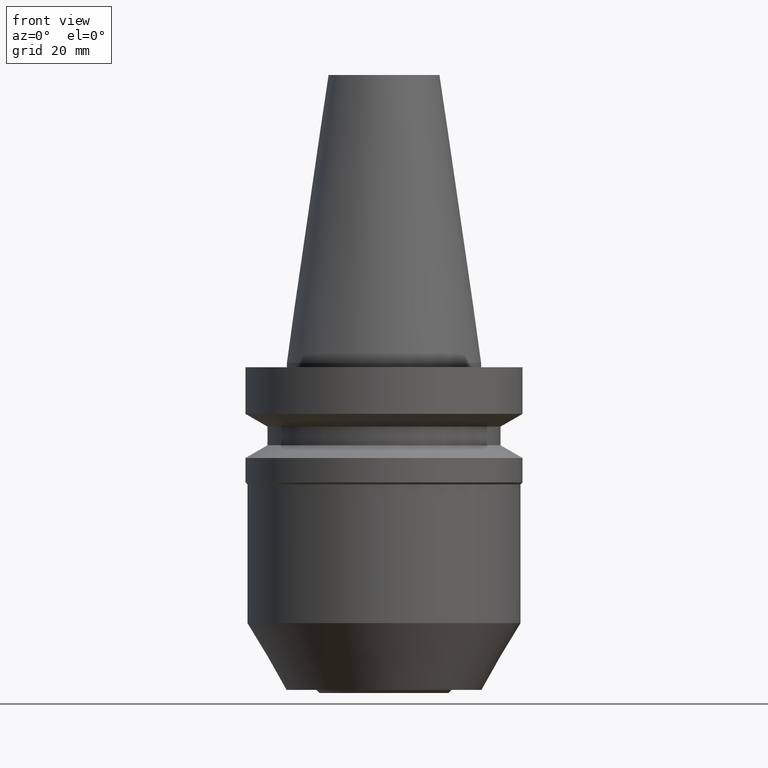
[diagram: clean part render]
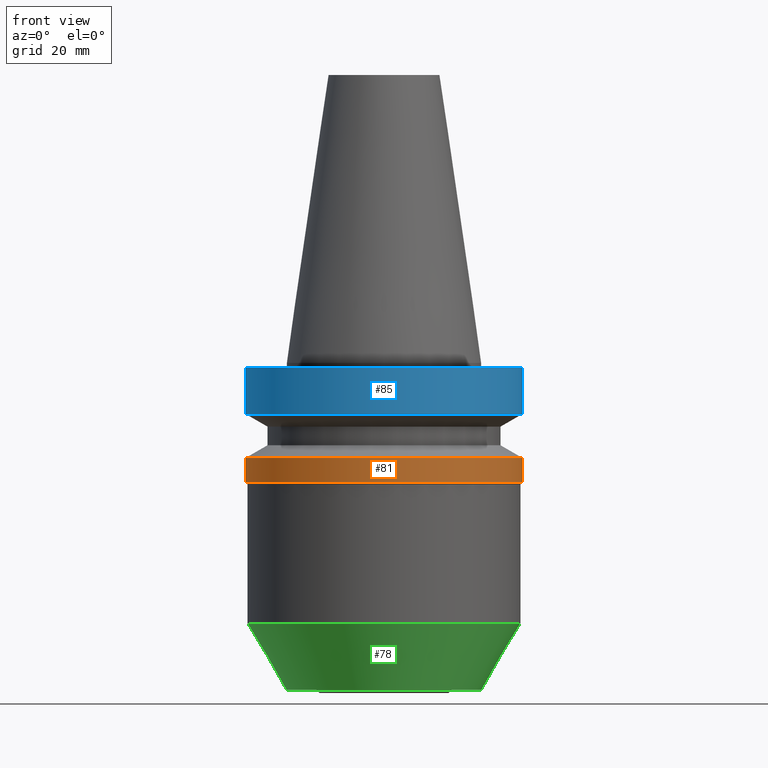
[diagram: same view with three faces highlighted in distinct colors, each labeled with its STEP entity id]
A machine part, front view with three faces highlighted in distinct colors.
Their STEP definitions:

[orange] entity #81 — the highlighted cylindrical surface (bore or boss wall) has radius 31.5 mm, axis along (0, 0, -1).
#81=ADVANCED_FACE('',(#108,#109),#110,.T.);
#108=FACE_BOUND('',#151,.T.);
#109=FACE_BOUND('',#152,.T.);
#110=CYLINDRICAL_SURFACE('',#153,31.5000000000009);
#151=EDGE_LOOP('',(#206));
#152=EDGE_LOOP('',(#207));
#153=AXIS2_PLACEMENT_3D('',#208,#209,#210);
#206=ORIENTED_EDGE('',*,*,#256,.F.);
#207=ORIENTED_EDGE('',*,*,#255,.T.);
#208=CARTESIAN_POINT('',(1.49253379602267E-015,2.98506759204535E-015,-24.3749266655796));
#209=DIRECTION('',(6.12323399573677E-017,1.22464679914766E-016,-1.0));
#210=DIRECTION('',(-1.23259516440779E-032,1.0,1.22464679914766E-016));
#255=EDGE_CURVE('',#274,#274,#275,.T.);
#256=EDGE_CURVE('',#276,#276,#277,.T.);
#274=VERTEX_POINT('',#302);
#275=CIRCLE('',#303,31.5000000000005);
#276=VERTEX_POINT('',#304);
#277=CIRCLE('',#305,31.5000000000014);
#302=CARTESIAN_POINT('',(1.662458029841E-015,31.5000000000005,-27.149999999975));
#303=AXIS2_PLACEMENT_3D('',#335,#336,#337);
#304=CARTESIAN_POINT('',(1.32260956220435E-015,31.5000000000014,-21.5998533311842));
#305=AXIS2_PLACEMENT_3D('',#338,#339,#340);
#335=CARTESIAN_POINT('',(1.662458029841E-015,3.324916059682E-015,-27.149999999975));
#336=DIRECTION('',(-6.12323399573677E-017,-1.22464679914768E-016,1.0));
#337=DIRECTION('',(-1.23259516440781E-032,1.0,1.22464679914768E-016));
#338=CARTESIAN_POINT('',(1.32260956220435E-015,2.6452191244087E-015,-21.5998533311842));
#339=DIRECTION('',(-6.12323399573677E-017,-1.22464679914765E-016,1.0));
#340=DIRECTION('',(-1.23259516440778E-032,1.0,1.22464679914765E-016));

[blue] entity #85 — the highlighted cylindrical surface (bore or boss wall) has radius 31.5 mm, axis along (0, 0, -1).
#85=ADVANCED_FACE('',(#120,#121),#122,.T.);
#120=FACE_BOUND('',#163,.T.);
#121=FACE_BOUND('',#164,.T.);
#122=CYLINDRICAL_SURFACE('',#165,31.5000000000011);
#163=EDGE_LOOP('',(#226));
#164=EDGE_LOOP('',(#227));
#165=AXIS2_PLACEMENT_3D('',#228,#229,#230);
#226=ORIENTED_EDGE('',*,*,#260,.F.);
#227=ORIENTED_EDGE('',*,*,#259,.T.);
#228=CARTESIAN_POINT('',(3.85768232168875E-016,7.71536464337749E-016,-6.30007333440894));
#229=DIRECTION('',(6.12323399573677E-017,1.22464679914766E-016,-1.0));
#230=DIRECTION('',(-1.23259516440779E-032,1.0,1.22464679914766E-016));
#259=EDGE_CURVE('',#282,#282,#283,.T.);
#260=EDGE_CURVE('',#284,#284,#285,.T.);
#282=VERTEX_POINT('',#310);
#283=CIRCLE('',#311,31.5000000000011);
#284=VERTEX_POINT('',#312);
#285=CIRCLE('',#313,31.5000000000011);
#310=CARTESIAN_POINT('',(7.10304124380372E-016,31.5000000000011,-11.6001466688177));
#311=AXIS2_PLACEMENT_3D('',#347,#348,#349);
#312=CARTESIAN_POINT('',(6.12323399573762E-017,31.5000000000011,-1.00000000000014));
#313=AXIS2_PLACEMENT_3D('',#350,#351,#352);
#347=CARTESIAN_POINT('',(7.10304124380372E-016,1.42060824876074E-015,-11.6001466688177));
#348=DIRECTION('',(-6.12323399573677E-017,-1.22464679914766E-016,1.0));
#349=DIRECTION('',(-1.23259516440779E-032,1.0,1.22464679914766E-016));
#350=CARTESIAN_POINT('',(6.12323399573764E-017,1.22464679914753E-016,-1.00000000000014));
#351=DIRECTION('',(-6.12323399573677E-017,-1.22464679914766E-016,1.0));
#352=DIRECTION('',(-1.23259516440779E-032,1.0,1.22464679914766E-016));

[green] entity #78 — the highlighted conical surface has half-angle 30 deg.
#78=ADVANCED_FACE('',(#99,#100),#101,.T.);
#99=FACE_BOUND('',#142,.T.);
#100=FACE_BOUND('',#143,.T.);
#101=CONICAL_SURFACE('',#144,26.6749999999893,0.523598775598276);
#142=EDGE_LOOP('',(#191));
#143=EDGE_LOOP('',(#192));
#144=AXIS2_PLACEMENT_3D('',#193,#194,#195);
#191=ORIENTED_EDGE('',*,*,#253,.F.);
#192=ORIENTED_EDGE('',*,*,#252,.T.);
#193=CARTESIAN_POINT('',(4.08556119189093E-015,8.17112238378185E-015,-66.7222777168969));
#194=DIRECTION('',(-6.12323399573677E-017,-1.22464679914743E-016,1.0));
#195=DIRECTION('',(-1.23259516440779E-032,1.0,1.22464679914743E-016));
#252=EDGE_CURVE('',#268,#268,#269,.T.);
#253=EDGE_CURVE('',#270,#270,#271,.T.);
#268=VERTEX_POINT('',#296);
#269=CIRCLE('',#297,22.2999999999999);
#270=VERTEX_POINT('',#298);
#271=CIRCLE('',#299,31.0499999999786);
#296=CARTESIAN_POINT('',(4.54956285883197E-015,22.2999999999999,-74.2999999999927));
#297=AXIS2_PLACEMENT_3D('',#326,#327,#328);
#298=CARTESIAN_POINT('',(3.62155952494988E-015,31.0499999999786,-59.144555433801));
#299=AXIS2_PLACEMENT_3D('',#329,#330,#331);
#326=CARTESIAN_POINT('',(4.54956285883197E-015,9.09912571766394E-015,-74.2999999999927));
#327=DIRECTION('',(-6.12323399573677E-017,-1.22464679914764E-016,1.0));
#328=DIRECTION('',(-1.232595164408E-032,1.0,1.22464679914764E-016));
#329=CARTESIAN_POINT('',(3.62155952494988E-015,7.24311904989976E-015,-59.144555433801));
#330=DIRECTION('',(-6.12323399573677E-017,-1.22464679914728E-016,1.0));
#331=DIRECTION('',(-1.23259516440822E-032,1.0,1.22464679914728E-016));